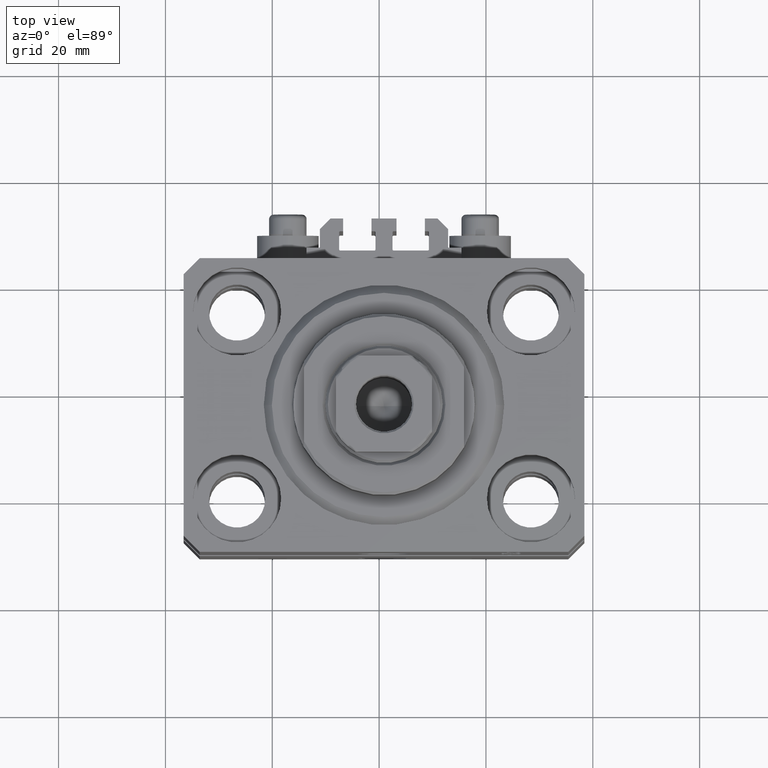
[diagram: clean part render]
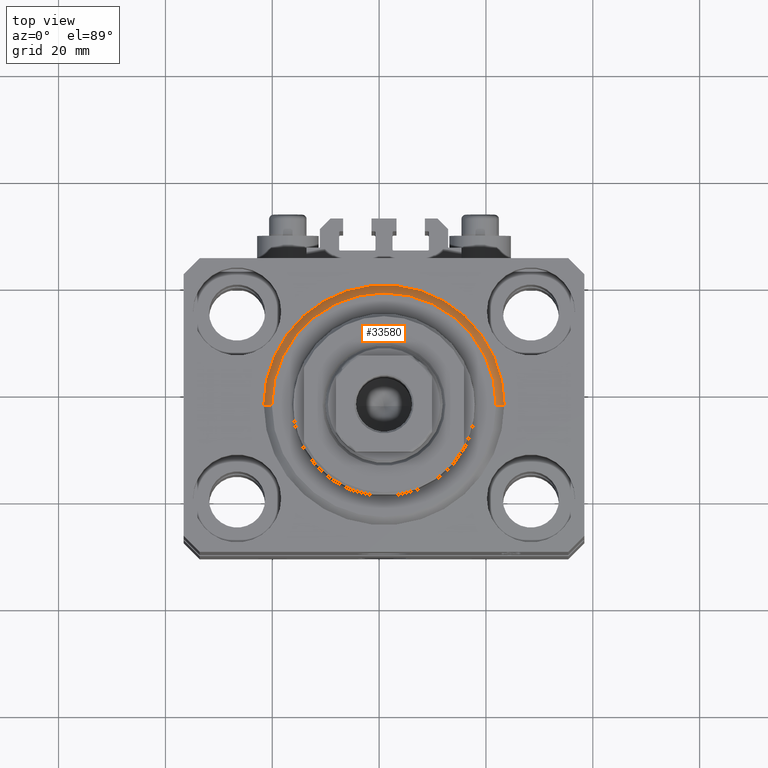
[diagram: same view with one face highlighted and labeled with its STEP entity id]
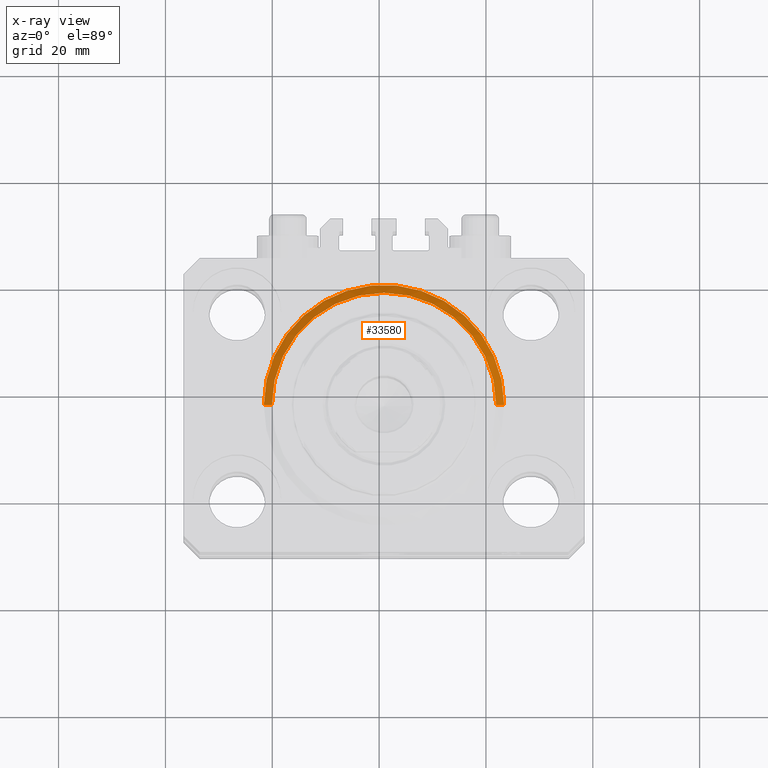
[diagram: x-ray of the same camera — body ghosted, the highlighted face saturated]
A machine part, top view. The second image highlights one B-rep face of the part: STEP entity #33580.
The next image is the same camera in x-ray: the body ghosted, the highlighted face saturated — about 0% of this face is hidden behind the body in this view.
In plain terms, the highlighted conical surface has half-angle 45 deg.
Its self-contained STEP definition (entity closure, byte-faithful):
#132 = CARTESIAN_POINT ( 'NONE',  ( -20.99999999999998934, 2.663606788145492628E-15, 0.000000000000000000 ) ) ;
#1134 = DIRECTION ( 'NONE',  ( -0.7071067811865500152, 8.659560562354963673E-17, 0.7071067811865451302 ) ) ;
#1379 = EDGE_CURVE ( 'NONE', #28853, #45803, #4024, .T. ) ;
#1993 = CARTESIAN_POINT ( 'NONE',  ( -22.50000000000000355, 0.000000000000000000, 1.500000000000001332 ) ) ;
#2086 = CARTESIAN_POINT ( 'NONE',  ( 22.50000000000000355, 0.000000000000000000, 1.500000000000001332 ) ) ;
#3032 = DIRECTION ( 'NONE',  ( 0.7071067811865500152, 0.000000000000000000, 0.7071067811865451302 ) ) ;
#4024 = LINE ( 'NONE', #22480, #7375 ) ;
#6312 = CARTESIAN_POINT ( 'NONE',  ( 0.000000000000000000, 0.000000000000000000, 1.500000000000001332 ) ) ;
#7042 = ORIENTED_EDGE ( 'NONE', *, *, #39660, .F. ) ;
#7375 = VECTOR ( 'NONE', #1134, 1000.000000000000114 ) ;
#9181 = DIRECTION ( 'NONE',  ( -0.000000000000000000, -0.000000000000000000, 1.000000000000000000 ) ) ;
#9585 = ORIENTED_EDGE ( 'NONE', *, *, #17355, .F. ) ;
#9906 = DIRECTION ( 'NONE',  ( 1.000000000000000000, 0.000000000000000000, 0.000000000000000000 ) ) ;
#10914 = CARTESIAN_POINT ( 'NONE',  ( 20.99999999999998934, 0.000000000000000000, 0.000000000000000000 ) ) ;
#13446 = CARTESIAN_POINT ( 'NONE',  ( 22.50000000000000355, 2.755455298081545172E-15, 1.500000000000001332 ) ) ;
#17355 = EDGE_CURVE ( 'NONE', #29436, #45803, #24696, .T. ) ;
#17811 = EDGE_CURVE ( 'NONE', #35624, #29436, #35400, .T. ) ;
#19203 = CARTESIAN_POINT ( 'NONE',  ( 0.000000000000000000, 0.000000000000000000, 0.000000000000000000 ) ) ;
#20851 = VECTOR ( 'NONE', #3032, 1000.000000000000114 ) ;
#20933 = DIRECTION ( 'NONE',  ( -0.000000000000000000, -0.000000000000000000, 1.000000000000000000 ) ) ;
#22480 = CARTESIAN_POINT ( 'NONE',  ( -22.50000000000000355, 2.755455298081545172E-15, 1.500000000000001332 ) ) ;
#22796 = DIRECTION ( 'NONE',  ( 1.000000000000000000, 0.000000000000000000, 0.000000000000000000 ) ) ;
#24485 = CONICAL_SURFACE ( 'NONE', #29863, 22.50000000000000355, 0.7853981633974517207 ) ;
#24696 = CIRCLE ( 'NONE', #38451, 22.50000000000000355 ) ;
#24697 = AXIS2_PLACEMENT_3D ( 'NONE', #19203, #37389, #22796 ) ;
#28853 = VERTEX_POINT ( 'NONE', #132 ) ;
#29436 = VERTEX_POINT ( 'NONE', #13446 ) ;
#29663 = EDGE_LOOP ( 'NONE', ( #7042, #31984, #9585, #44830 ) ) ;
#29863 = AXIS2_PLACEMENT_3D ( 'NONE', #6312, #20933, #9906 ) ;
#31237 = DIRECTION ( 'NONE',  ( 1.000000000000000000, 0.000000000000000000, 0.000000000000000000 ) ) ;
#31984 = ORIENTED_EDGE ( 'NONE', *, *, #1379, .T. ) ;
#32356 = CIRCLE ( 'NONE', #24697, 20.99999999999998934 ) ;
#33580 = ADVANCED_FACE ( 'NONE', ( #39126 ), #24485, .T. ) ;
#35400 = LINE ( 'NONE', #2086, #20851 ) ;
#35624 = VERTEX_POINT ( 'NONE', #10914 ) ;
#37389 = DIRECTION ( 'NONE',  ( -0.000000000000000000, -0.000000000000000000, -1.000000000000000000 ) ) ;
#38451 = AXIS2_PLACEMENT_3D ( 'NONE', #41995, #9181, #31237 ) ;
#39126 = FACE_OUTER_BOUND ( 'NONE', #29663, .T. ) ;
#39660 = EDGE_CURVE ( 'NONE', #28853, #35624, #32356, .T. ) ;
#41995 = CARTESIAN_POINT ( 'NONE',  ( 0.000000000000000000, 0.000000000000000000, 1.500000000000001332 ) ) ;
#44830 = ORIENTED_EDGE ( 'NONE', *, *, #17811, .F. ) ;
#45803 = VERTEX_POINT ( 'NONE', #1993 ) ;